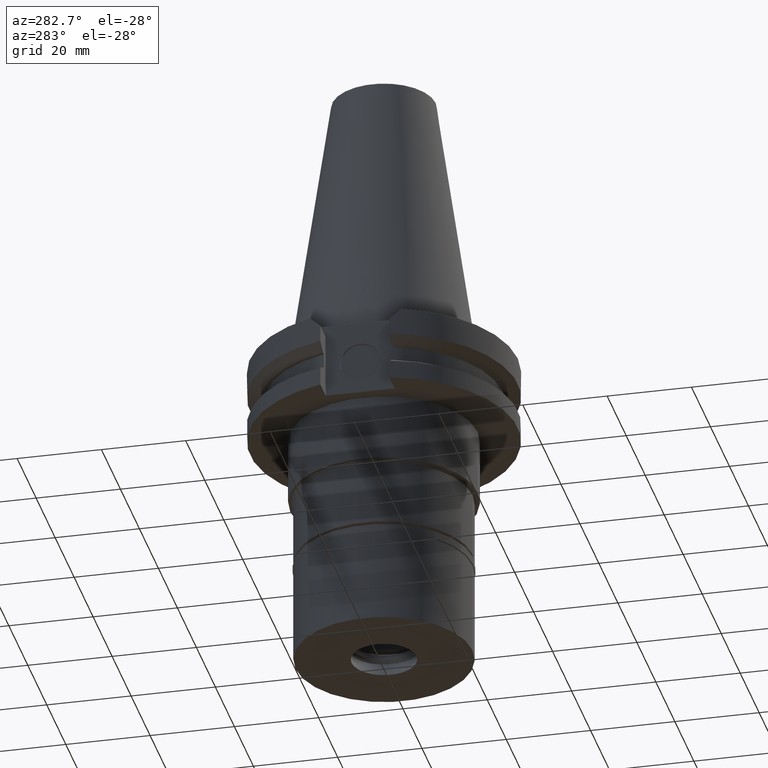
[diagram: clean part render]
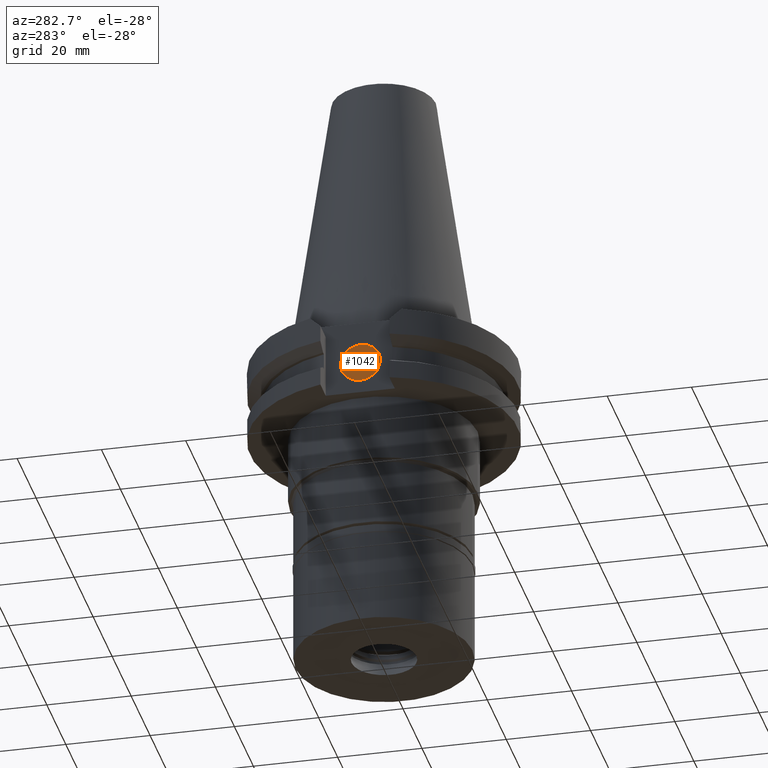
[diagram: same view with one face highlighted and labeled with its STEP entity id]
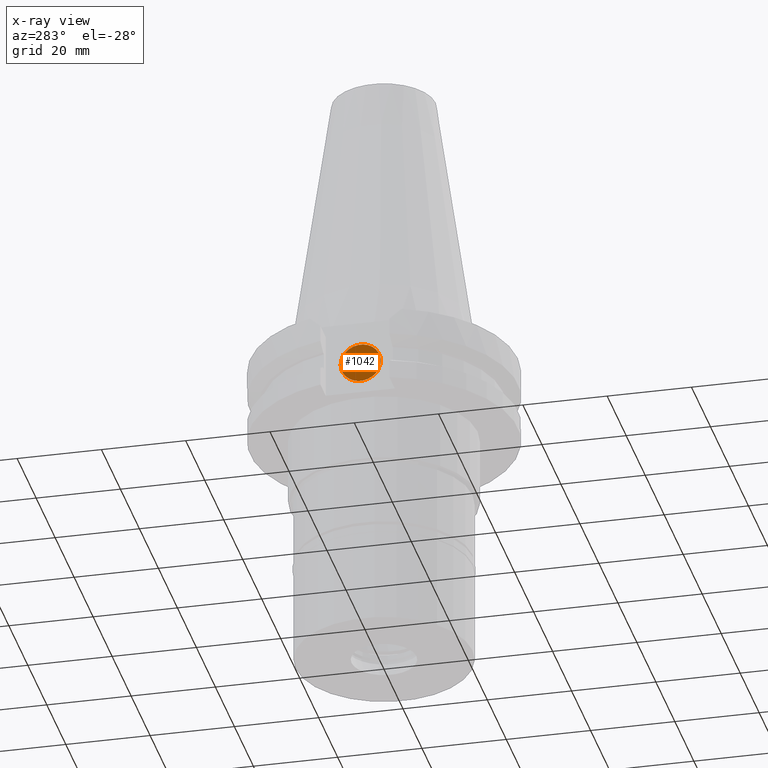
[diagram: x-ray of the same camera — body ghosted, the highlighted face saturated]
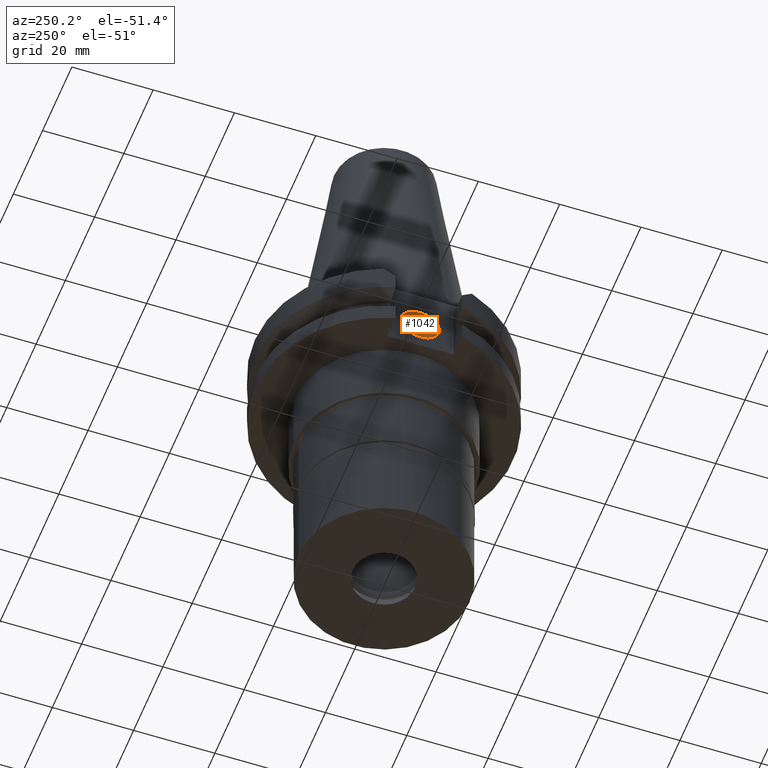
[diagram: same view with one face highlighted and labeled with its STEP entity id]
A machine part, auxiliary view. The second image highlights one B-rep face of the part: STEP entity #1042.
The next image is the same camera in x-ray: the body ghosted, the highlighted face saturated — about 0% of this face is hidden behind the body in this view.
A second angle (auxiliary view) of the same face is appended — the face is thin or edge-on in the first view.
In plain terms, the highlighted planar face has unit normal (1, 0, 0).
Its self-contained STEP definition (entity closure, byte-faithful):
#74 = DIRECTION ( 'NONE',  ( 0.0000000000000000000, -1.000000000000000000, 0.0000000000000000000 ) ) ;
#209 = DIRECTION ( 'NONE',  ( 1.000000000000000000, 0.0000000000000000000, 0.0000000000000000000 ) ) ;
#229 = CARTESIAN_POINT ( 'NONE',  ( -24.59900000000000020, 0.0000000000000000000, -11.18000000000000149 ) ) ;
#563 = DIRECTION ( 'NONE',  ( 1.000000000000000000, 0.0000000000000000000, 0.0000000000000000000 ) ) ;
#589 = DIRECTION ( 'NONE',  ( 1.000000000000000000, 0.0000000000000000000, 0.0000000000000000000 ) ) ;
#847 = FACE_OUTER_BOUND ( 'NONE', #2099, .T. ) ;
#1042 = ADVANCED_FACE ( 'NONE', ( #847 ), #2618, .F. ) ;
#1092 = DIRECTION ( 'NONE',  ( 0.0000000000000000000, 1.000000000000000000, 0.0000000000000000000 ) ) ;
#1184 = ORIENTED_EDGE ( 'NONE', *, *, #3123, .F. ) ;
#1206 = AXIS2_PLACEMENT_3D ( 'NONE', #1327, #563, #74 ) ;
#1209 = DIRECTION ( 'NONE',  ( 0.0000000000000000000, 1.000000000000000000, 0.0000000000000000000 ) ) ;
#1327 = CARTESIAN_POINT ( 'NONE',  ( -24.59900000000000020, 0.0000000000000000000, -11.18000000000000149 ) ) ;
#1367 = CIRCLE ( 'NONE', #1206, 4.762500000000000178 ) ;
#1699 = CARTESIAN_POINT ( 'NONE',  ( -24.59900000000000020, -4.762500000000000178, -11.18000000000000149 ) ) ;
#2099 = EDGE_LOOP ( 'NONE', ( #2587, #1184 ) ) ;
#2137 = VERTEX_POINT ( 'NONE', #2319 ) ;
#2147 = CARTESIAN_POINT ( 'NONE',  ( -24.59900000000000020, 0.0000000000000000000, 0.0000000000000000000 ) ) ;
#2319 = CARTESIAN_POINT ( 'NONE',  ( -24.59900000000000020, 4.762500000000000178, -11.18000000000000149 ) ) ;
#2508 = AXIS2_PLACEMENT_3D ( 'NONE', #2147, #589, #1092 ) ;
#2587 = ORIENTED_EDGE ( 'NONE', *, *, #2989, .F. ) ;
#2618 = PLANE ( 'NONE',  #2508 ) ;
#2723 = CIRCLE ( 'NONE', #3260, 4.762500000000000178 ) ;
#2739 = VERTEX_POINT ( 'NONE', #1699 ) ;
#2989 = EDGE_CURVE ( 'NONE', #2137, #2739, #2723, .T. ) ;
#3123 = EDGE_CURVE ( 'NONE', #2739, #2137, #1367, .T. ) ;
#3260 = AXIS2_PLACEMENT_3D ( 'NONE', #229, #209, #1209 ) ;